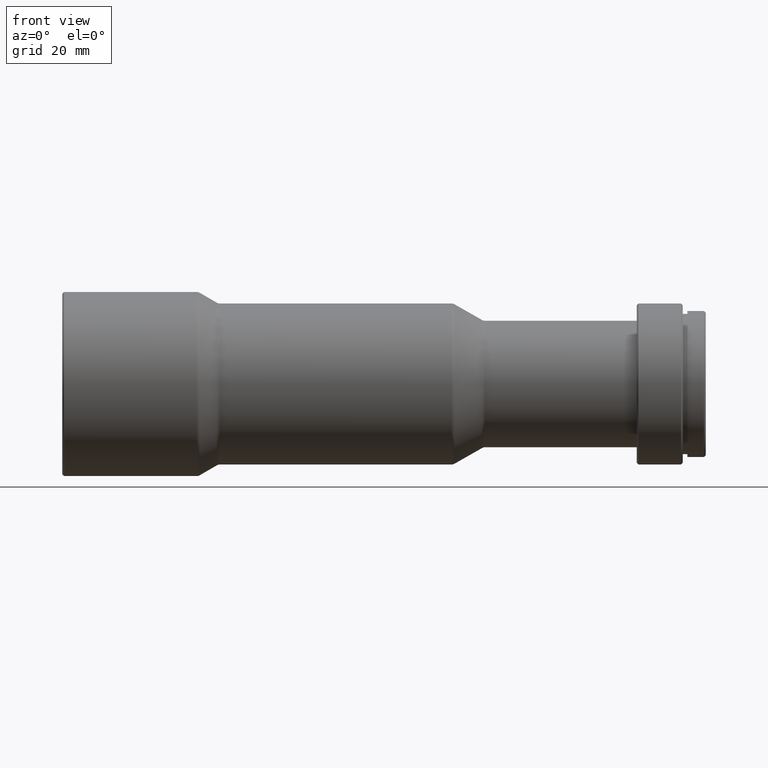
[diagram: clean part render]
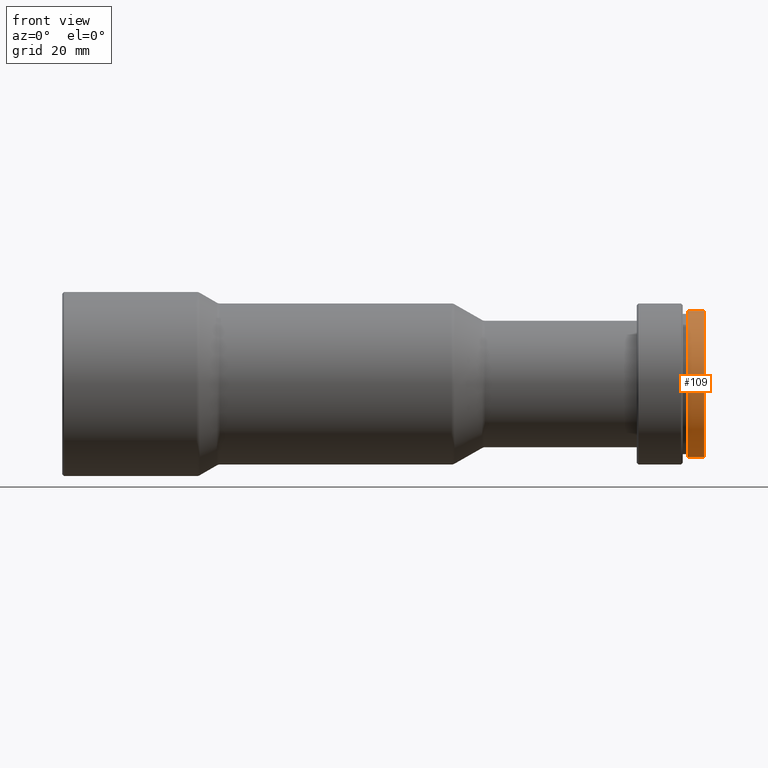
[diagram: same view with one face highlighted and labeled with its STEP entity id]
A machine part, front view. The second image highlights one B-rep face of the part: STEP entity #109.
In plain terms, the highlighted cylindrical surface (partial cylindrical patch) has radius 12.7 mm, axis along (-1, -0, -0).
Its self-contained STEP definition (entity closure, byte-faithful):
#104 = DIRECTION ( 'NONE',  ( 0.0000000000000000000, 0.0000000000000000000, 1.000000000000000000 ) ) ;
#109 = ADVANCED_FACE ( 'NONE', ( #1180 ), #1516, .T. ) ;
#169 = LINE ( 'NONE', #260, #330 ) ;
#260 = CARTESIAN_POINT ( 'NONE',  ( 0.0000000000000000000, 1.555301434917139800E-015, -12.70000000000001000 ) ) ;
#263 = DIRECTION ( 'NONE',  ( 0.0000000000000000000, 0.0000000000000000000, 1.000000000000000000 ) ) ;
#286 = CARTESIAN_POINT ( 'NONE',  ( 111.5999999999999900, 0.0000000000000000000, 12.70000000000001000 ) ) ;
#318 = AXIS2_PLACEMENT_3D ( 'NONE', #842, #1854, #263 ) ;
#330 = VECTOR ( 'NONE', #532, 1000.000000000000000 ) ;
#433 = ORIENTED_EDGE ( 'NONE', *, *, #1634, .F. ) ;
#456 = EDGE_CURVE ( 'NONE', #1185, #623, #1206, .T. ) ;
#532 = DIRECTION ( 'NONE',  ( -1.000000000000000000, -0.0000000000000000000, -0.0000000000000000000 ) ) ;
#541 = DIRECTION ( 'NONE',  ( -1.000000000000000000, -0.0000000000000000000, -0.0000000000000000000 ) ) ;
#558 = CARTESIAN_POINT ( 'NONE',  ( 108.7000000000000200, 0.0000000000000000000, 12.70000000000001000 ) ) ;
#623 = VERTEX_POINT ( 'NONE', #558 ) ;
#635 = EDGE_LOOP ( 'NONE', ( #1146, #1607, #1770, #433 ) ) ;
#636 = VECTOR ( 'NONE', #541, 1000.000000000000000 ) ;
#804 = CARTESIAN_POINT ( 'NONE',  ( 111.5999999999999900, 0.0000000000000000000, 0.0000000000000000000 ) ) ;
#842 = CARTESIAN_POINT ( 'NONE',  ( 108.7000000000000200, 0.0000000000000000000, 0.0000000000000000000 ) ) ;
#961 = CARTESIAN_POINT ( 'NONE',  ( 0.0000000000000000000, 0.0000000000000000000, 0.0000000000000000000 ) ) ;
#1096 = CIRCLE ( 'NONE', #1757, 12.70000000000001000 ) ;
#1097 = CARTESIAN_POINT ( 'NONE',  ( 0.0000000000000000000, 0.0000000000000000000, 12.70000000000001000 ) ) ;
#1146 = ORIENTED_EDGE ( 'NONE', *, *, #1202, .F. ) ;
#1165 = CIRCLE ( 'NONE', #318, 12.70000000000001000 ) ;
#1180 = FACE_OUTER_BOUND ( 'NONE', #635, .T. ) ;
#1185 = VERTEX_POINT ( 'NONE', #286 ) ;
#1202 = EDGE_CURVE ( 'NONE', #1718, #1720, #169, .T. ) ;
#1206 = LINE ( 'NONE', #1097, #636 ) ;
#1262 = CARTESIAN_POINT ( 'NONE',  ( 108.7000000000000200, 1.555301434917139800E-015, -12.70000000000001000 ) ) ;
#1516 = CYLINDRICAL_SURFACE ( 'NONE', #1853, 12.70000000000001000 ) ;
#1531 = DIRECTION ( 'NONE',  ( -1.000000000000000000, -0.0000000000000000000, -0.0000000000000000000 ) ) ;
#1538 = DIRECTION ( 'NONE',  ( -1.000000000000000000, -0.0000000000000000000, -0.0000000000000000000 ) ) ;
#1551 = CARTESIAN_POINT ( 'NONE',  ( 111.5999999999999900, 1.555301434917139800E-015, -12.70000000000001000 ) ) ;
#1607 = ORIENTED_EDGE ( 'NONE', *, *, #1880, .T. ) ;
#1634 = EDGE_CURVE ( 'NONE', #1720, #623, #1165, .T. ) ;
#1681 = DIRECTION ( 'NONE',  ( 0.0000000000000000000, 0.0000000000000000000, 1.000000000000000000 ) ) ;
#1718 = VERTEX_POINT ( 'NONE', #1551 ) ;
#1720 = VERTEX_POINT ( 'NONE', #1262 ) ;
#1757 = AXIS2_PLACEMENT_3D ( 'NONE', #804, #1531, #1681 ) ;
#1770 = ORIENTED_EDGE ( 'NONE', *, *, #456, .T. ) ;
#1853 = AXIS2_PLACEMENT_3D ( 'NONE', #961, #1538, #104 ) ;
#1854 = DIRECTION ( 'NONE',  ( -1.000000000000000000, -0.0000000000000000000, -0.0000000000000000000 ) ) ;
#1880 = EDGE_CURVE ( 'NONE', #1718, #1185, #1096, .T. ) ;